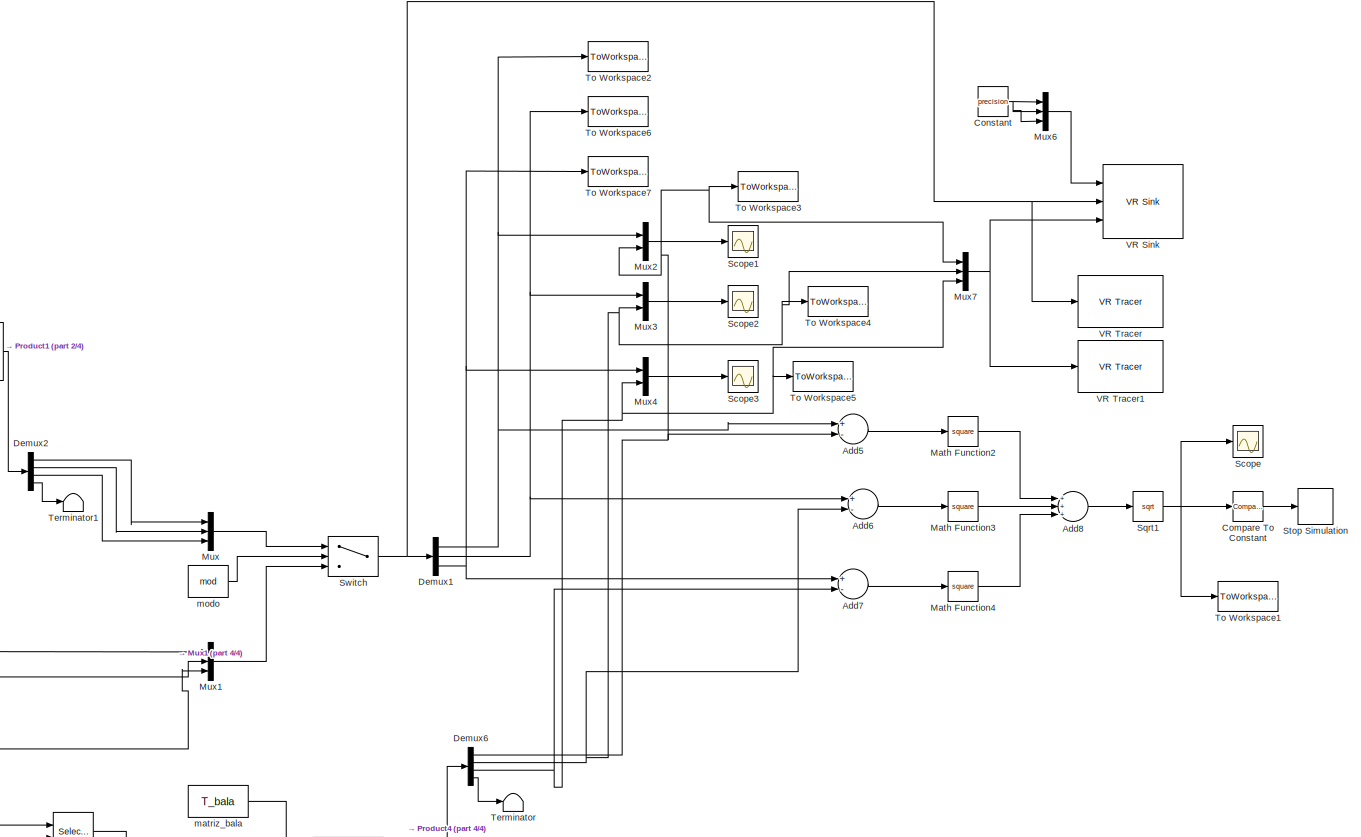
[diagram: root canvas - part 1/4, right side, full height]
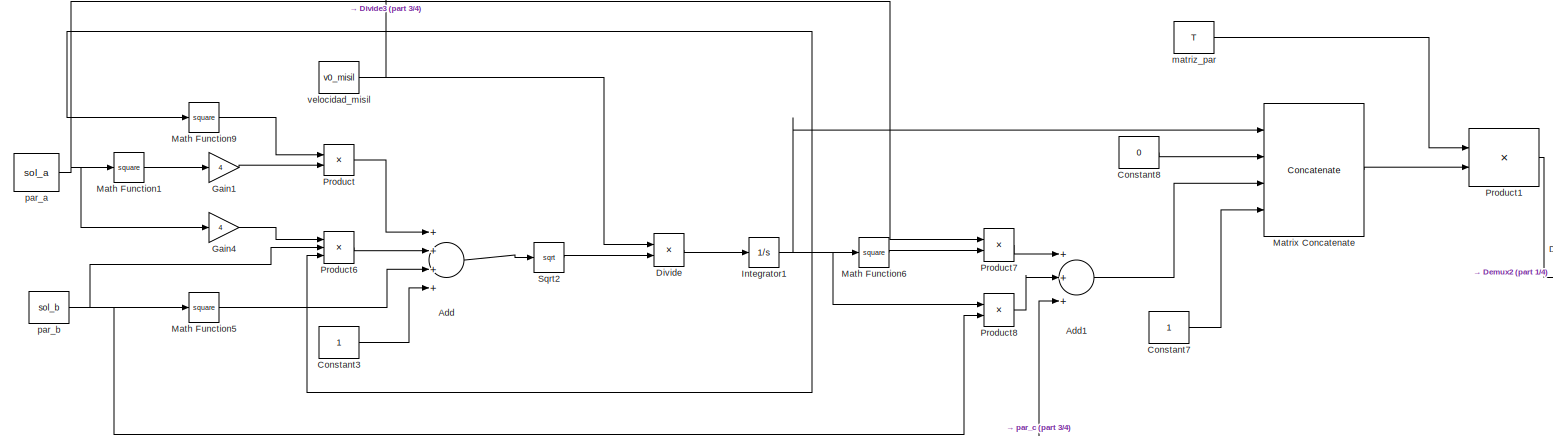
[diagram: root canvas - part 2/4, middle left region]
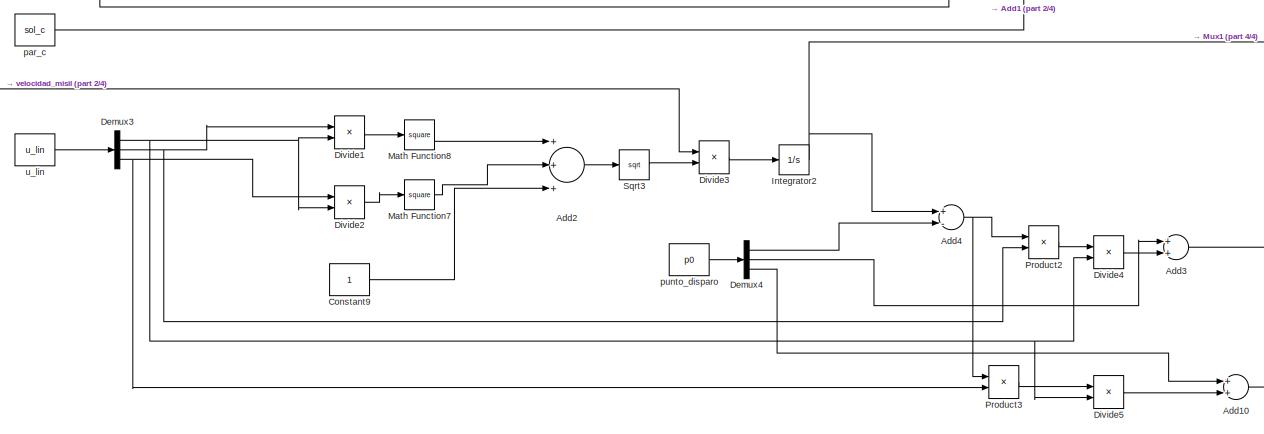
[diagram: root canvas - part 3/4, bottom left region]
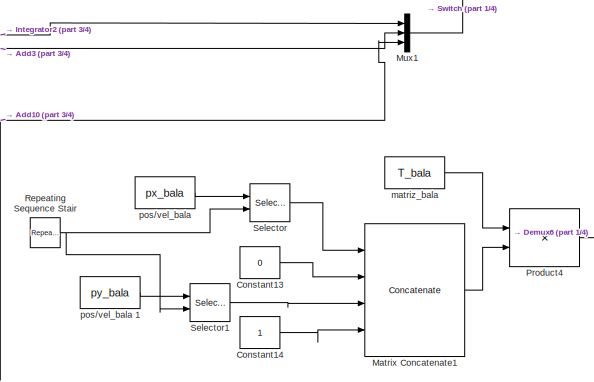
[diagram: root canvas - part 4/4, bottom center region]
MODEL slx_c09bcd163fec
KIND model
CONFIG AbsTol = auto
CONFIG FixedStep = delta_t
CONFIG MaxStep = auto
CONFIG MinStep = auto
CONFIG RelTol = 1e-3
CONFIG SampleTimeConstraint = Unconstrained
CONFIG Solver = ode3
CONFIG SolverMode = Auto
CONFIG SolverName = ode3
CONFIG StartTime = 0.0
CONFIG StopTime = 100
BLOCK [Sum] Add
  InputSameDT = off
  Inputs = ++++
  OutDataTypeStr = Inherit: Inherit via internal rule
  Ports = [4, 1]
  SaturateOnIntegerOverflow = off
BLOCK [Sum] Add1
  InputSameDT = off
  Inputs = +++
  OutDataTypeStr = Inherit: Inherit via internal rule
  Ports = [3, 1]
  SaturateOnIntegerOverflow = off
BLOCK [Sum] Add10
  InputSameDT = off
  OutDataTypeStr = Inherit: Inherit via internal rule
  Ports = [2, 1]
  SaturateOnIntegerOverflow = off
BLOCK [Sum] Add2
  InputSameDT = off
  Inputs = +++
  OutDataTypeStr = Inherit: Inherit via internal rule
  Ports = [3, 1]
  SaturateOnIntegerOverflow = off
BLOCK [Sum] Add3
  InputSameDT = off
  OutDataTypeStr = Inherit: Inherit via internal rule
  Ports = [2, 1]
  SaturateOnIntegerOverflow = off
BLOCK [Sum] Add4
  InputSameDT = off
  Inputs = +-
  OutDataTypeStr = Inherit: Inherit via internal rule
  Ports = [2, 1]
  SaturateOnIntegerOverflow = off
BLOCK [Sum] Add5
  InputSameDT = off
  Inputs = +-
  OutDataTypeStr = Inherit: Inherit via internal rule
  Ports = [2, 1]
  SaturateOnIntegerOverflow = off
BLOCK [Sum] Add6
  InputSameDT = off
  Inputs = +-
  OutDataTypeStr = Inherit: Inherit via internal rule
  Ports = [2, 1]
  SaturateOnIntegerOverflow = off
BLOCK [Sum] Add7
  InputSameDT = off
  Inputs = +-
  OutDataTypeStr = Inherit: Inherit via internal rule
  Ports = [2, 1]
  SaturateOnIntegerOverflow = off
BLOCK [Sum] Add8
  InputSameDT = off
  Inputs = +++
  OutDataTypeStr = Inherit: Inherit via internal rule
  Ports = [3, 1]
  SaturateOnIntegerOverflow = off
BLOCK [Reference] Compare To Constant  REF=simulink/Logic and Bit
Operations/Compare
To Constant
  OutDataTypeStr = boolean
  Ports = [1, 1]
  SourceBlock = simulink/Logic and Bit\nOperations/Compare\nTo Constant
  SourceType = Compare To Constant
  ZeroCross = on
  const = precision
  relop = <
BLOCK [Constant] Constant
  Value = precision
BLOCK [Constant] Constant13
  Tag = Elevacion
  Value = 0
BLOCK [Constant] Constant14
  Tag = Elevacion
BLOCK [Constant] Constant3
  Tag = Elevacion
BLOCK [Constant] Constant7
  Tag = Elevacion
BLOCK [Constant] Constant8
  Tag = Elevacion
  Value = 0
BLOCK [Constant] Constant9
  Tag = Elevacion
BLOCK [Demux] Demux1
  DisplayOption = bar
  Outputs = 3
  Ports = [1, 3]
BLOCK [Demux] Demux2
  DisplayOption = bar
  Ports = [1, 4]
BLOCK [Demux] Demux3
  DisplayOption = bar
  Outputs = 3
  Ports = [1, 3]
BLOCK [Demux] Demux4
  DisplayOption = bar
  Outputs = 3
  Ports = [1, 3]
BLOCK [Demux] Demux6
  DisplayOption = bar
  Ports = [1, 4]
BLOCK [Product] Divide
  InputSameDT = off
  Inputs = */
  OutDataTypeStr = Inherit: Inherit via internal rule
  Ports = [2, 1]
  RndMeth = Floor
  SaturateOnIntegerOverflow = off
BLOCK [Product] Divide1
  InputSameDT = off
  Inputs = */
  OutDataTypeStr = Inherit: Inherit via internal rule
  Ports = [2, 1]
  RndMeth = Floor
  SaturateOnIntegerOverflow = off
BLOCK [Product] Divide2
  InputSameDT = off
  Inputs = */
  OutDataTypeStr = Inherit: Inherit via internal rule
  Ports = [2, 1]
  RndMeth = Floor
  SaturateOnIntegerOverflow = off
BLOCK [Product] Divide3
  InputSameDT = off
  Inputs = */
  OutDataTypeStr = Inherit: Inherit via internal rule
  Ports = [2, 1]
  RndMeth = Floor
  SaturateOnIntegerOverflow = off
BLOCK [Product] Divide4
  InputSameDT = off
  Inputs = */
  OutDataTypeStr = Inherit: Inherit via internal rule
  Ports = [2, 1]
  RndMeth = Floor
  SaturateOnIntegerOverflow = off
BLOCK [Product] Divide5
  InputSameDT = off
  Inputs = */
  OutDataTypeStr = Inherit: Inherit via internal rule
  Ports = [2, 1]
  RndMeth = Floor
  SaturateOnIntegerOverflow = off
BLOCK [Gain] Gain1
  Gain = 4
  OutDataTypeStr = Inherit: Inherit via internal rule
  ParamDataTypeStr = Inherit: Inherit via internal rule
  SaturateOnIntegerOverflow = off
BLOCK [Gain] Gain4
  Gain = 4
  OutDataTypeStr = Inherit: Inherit via internal rule
  ParamDataTypeStr = Inherit: Inherit via internal rule
  SaturateOnIntegerOverflow = off
BLOCK [Integrator] Integrator1
  Ports = [1, 1]
BLOCK [Integrator] Integrator2
  InitialCondition = p0(1)
  Ports = [1, 1]
BLOCK [Math] Math Function1
  Operator = square
  Ports = [1, 1]
BLOCK [Math] Math Function2
  Operator = square
  Ports = [1, 1]
BLOCK [Math] Math Function3
  Operator = square
  Ports = [1, 1]
BLOCK [Math] Math Function4
  Operator = square
  Ports = [1, 1]
BLOCK [Math] Math Function5
  Operator = square
  Ports = [1, 1]
BLOCK [Math] Math Function6
  Operator = square
  Ports = [1, 1]
BLOCK [Math] Math Function7
  Operator = square
  Ports = [1, 1]
BLOCK [Math] Math Function8
  Operator = square
  Ports = [1, 1]
BLOCK [Math] Math Function9
  Operator = square
  Ports = [1, 1]
BLOCK [Concatenate] Matrix Concatenate
  Mode = Multidimensional array
  NumInputs = 4
  Ports = [4, 1]
BLOCK [Concatenate] Matrix Concatenate1
  Mode = Multidimensional array
  NumInputs = 4
  Ports = [4, 1]
BLOCK [Mux] Mux
  DisplayOption = bar
  Inputs = 3
  Ports = [3, 1]
BLOCK [Mux] Mux1
  DisplayOption = bar
  Inputs = 3
  Ports = [3, 1]
BLOCK [Mux] Mux2
  DisplayOption = bar
  Inputs = 2
  Ports = [2, 1]
BLOCK [Mux] Mux3
  DisplayOption = bar
  Inputs = 2
  Ports = [2, 1]
BLOCK [Mux] Mux4
  DisplayOption = bar
  Inputs = 2
  Ports = [2, 1]
BLOCK [Mux] Mux6
  DisplayOption = bar
  Inputs = 3
  Ports = [3, 1]
BLOCK [Mux] Mux7
  DisplayOption = bar
  Inputs = 3
  Ports = [3, 1]
BLOCK [Product] Product
  InputSameDT = off
  OutDataTypeStr = Inherit: Inherit via internal rule
  Ports = [2, 1]
  RndMeth = Floor
  SaturateOnIntegerOverflow = off
BLOCK [Product] Product1
  InputSameDT = off
  Multiplication = Matrix(*)
  OutDataTypeStr = Inherit: Inherit via internal rule
  Ports = [2, 1]
  RndMeth = Floor
  SaturateOnIntegerOverflow = off
BLOCK [Product] Product2
  InputSameDT = off
  OutDataTypeStr = Inherit: Inherit via internal rule
  Ports = [2, 1]
  RndMeth = Floor
  SaturateOnIntegerOverflow = off
BLOCK [Product] Product3
  InputSameDT = off
  OutDataTypeStr = Inherit: Inherit via internal rule
  Ports = [2, 1]
  RndMeth = Floor
  SaturateOnIntegerOverflow = off
BLOCK [Product] Product4
  InputSameDT = off
  Multiplication = Matrix(*)
  OutDataTypeStr = Inherit: Inherit via internal rule
  Ports = [2, 1]
  RndMeth = Floor
  SaturateOnIntegerOverflow = off
BLOCK [Product] Product6
  InputSameDT = off
  Inputs = 3
  OutDataTypeStr = Inherit: Inherit via internal rule
  Ports = [3, 1]
  RndMeth = Floor
  SaturateOnIntegerOverflow = off
BLOCK [Product] Product7
  InputSameDT = off
  OutDataTypeStr = Inherit: Inherit via internal rule
  Ports = [2, 1]
  RndMeth = Floor
  SaturateOnIntegerOverflow = off
BLOCK [Product] Product8
  InputSameDT = off
  OutDataTypeStr = Inherit: Inherit via internal rule
  Ports = [2, 1]
  RndMeth = Floor
  SaturateOnIntegerOverflow = off
BLOCK [Reference] Repeating Sequence Stair  REF=simulink/Sources/Repeating
Sequence
Stair
  ConRadixGroup = Best Precision: Vector-wise
  LockScale = off
  OutDataType = fixdt(0,8)
  OutDataTypeStr = double
  OutMax = []
  OutMin = []
  OutScaling = 2^-12
  OutValues = index_bala.'
  OutputDataTypeScalingMode = double
  Ports = [0, 1]
  SourceBlock = simulink/Sources/Repeating\nSequence\nStair
  SourceType = Repeating Sequence Stair
  tsamp = -1
BLOCK [Scope] Scope
  DataFormat = Array
  Decimation = 1
  Grid = on
  LimitDataPoints = on
  MaxDataPoints = 5000
  NumInputPorts = 1
  Ports = [1]
  SampleInput = off
  SampleTime = -1
  SaveName = ScopeData
  SaveToWorkspace = off
  ShowLegends = off
  TickLabels = OneTimeTick
  TimeRange = auto
  YMax = 140107.33308
  YMin = 93986.50188
  ZoomMode = on
BLOCK [Scope] Scope1
  DataFormat = Array
  Decimation = 1
  Grid = on
  LimitDataPoints = on
  MaxDataPoints = 5000
  NumInputPorts = 1
  Ports = [1]
  SampleInput = off
  SampleTime = -1
  SaveName = ScopeData1
  SaveToWorkspace = off
  ShowLegends = off
  TickLabels = OneTimeTick
  TimeRange = auto
  YMax = 1121.58339
  YMin = -10091.4526
  ZoomMode = on
BLOCK [Scope] Scope2
  DataFormat = Array
  Decimation = 1
  Grid = on
  LimitDataPoints = on
  MaxDataPoints = 5000
  NumInputPorts = 1
  Ports = [1]
  SampleInput = off
  SampleTime = -1
  SaveName = ScopeData2
  SaveToWorkspace = off
  ShowLegends = off
  TickLabels = OneTimeTick
  TimeRange = auto
  YMax = 9291.65254
  YMin = -1027.49282
  ZoomMode = on
BLOCK [Scope] Scope3
  DataFormat = Array
  Decimation = 1
  Grid = on
  LimitDataPoints = on
  MaxDataPoints = 5000
  NumInputPorts = 1
  Ports = [1]
  SampleInput = off
  SampleTime = -1
  SaveName = ScopeData3
  SaveToWorkspace = off
  ShowLegends = off
  TickLabels = OneTimeTick
  TimeRange = auto
  YMax = 5624.99987
  YMin = -624.99999
  ZoomMode = on
BLOCK [Selector] Selector
  IndexOptions = Index vector (port)
  Indices = [1 3]
  OutputSizes = 1
  Ports = [2, 1]
BLOCK [Selector] Selector1
  IndexOptions = Index vector (port)
  Indices = [1 3]
  OutputSizes = 1
  Ports = [2, 1]
BLOCK [Sqrt] Sqrt1
BLOCK [Sqrt] Sqrt2
BLOCK [Sqrt] Sqrt3
BLOCK [Stop] Stop Simulation
BLOCK [Switch] Switch
  Criteria = u2 > Threshold
  InputSameDT = off
  SaturateOnIntegerOverflow = off
BLOCK [Terminator] Terminator
BLOCK [Terminator] Terminator1
BLOCK [ToWorkspace] To Workspace1
  FixptAsFi = on
  MaxDataPoints = inf
  Ports = [1]
  SampleTime = -1
  Save2DSignal = 2-D array (concatenate along first dimension)
  VariableName = dis_col
BLOCK [ToWorkspace] To Workspace2
  FixptAsFi = on
  MaxDataPoints = inf
  Ports = [1]
  SampleTime = -1
  Save2DSignal = 2-D array (concatenate along first dimension)
  VariableName = x_misil
BLOCK [ToWorkspace] To Workspace3
  FixptAsFi = on
  MaxDataPoints = inf
  Ports = [1]
  SampleTime = -1
  Save2DSignal = 2-D array (concatenate along first dimension)
  VariableName = x_bala
BLOCK [ToWorkspace] To Workspace4
  FixptAsFi = on
  MaxDataPoints = inf
  Ports = [1]
  SampleTime = -1
  Save2DSignal = 2-D array (concatenate along first dimension)
  VariableName = y_bala
BLOCK [ToWorkspace] To Workspace5
  FixptAsFi = on
  MaxDataPoints = inf
  Ports = [1]
  SampleTime = -1
  Save2DSignal = 2-D array (concatenate along first dimension)
  VariableName = z_bala
BLOCK [ToWorkspace] To Workspace6
  FixptAsFi = on
  MaxDataPoints = inf
  Ports = [1]
  SampleTime = -1
  Save2DSignal = 2-D array (concatenate along first dimension)
  VariableName = y_misil
BLOCK [ToWorkspace] To Workspace7
  FixptAsFi = on
  MaxDataPoints = inf
  Ports = [1]
  SampleTime = -1
  Save2DSignal = 2-D array (concatenate along first dimension)
  VariableName = z_misil
BLOCK [Reference] VR Sink  REF=vrlib/VR Sink
  AllowVariableSize = off
  AutoView = off
  FieldsWritten = misil.scale.3.1.1.double#misil.translation.3.1.1.double#bala.translation.3.1.1.double
  InstantiateOnLoad = on
  Ports = [3]
  RemoteChange = off
  RemoteView = off
  SampleTime = -1
  SourceBlock = vrlib/VR Sink
  SourceType = Virtual Reality Sink
  VideoDimensions = []
  ViewEnable = on
  WorldFileName = robot.wrl
BLOCK [Reference] VR Tracer  REF=vrlib/VR Tracer
  ConnectPlane = off
  ConnectPoint = None
  ForceViewerOpen = off
  MarkerColor = red
  MarkerColorSelection = Selected from color list
  MarkerName = Tetrahedron
  MarkerScale = [10 10 10]
  PlaneCoeff = [0 1 0 0]
  PointCoord = [0 0 0]
  Ports = [1]
  SourceBlock = vrlib/VR Tracer
  SourceType = VR Tracer
  Ts = -1
  UseLines = on
  UseTriads = off
  VrmlFile = robot.wrl
  rgbval = [1 0 0]
BLOCK [Reference] VR Tracer1  REF=vrlib/VR Tracer
  ConnectPlane = off
  ConnectPoint = None
  ForceViewerOpen = off
  MarkerColor = blue
  MarkerColorSelection = Selected from color list
  MarkerName = Pyramid
  MarkerScale = [10 10 10]
  PlaneCoeff = [0 1 0 0]
  PointCoord = [0 0 0]
  Ports = [1]
  SourceBlock = vrlib/VR Tracer
  SourceType = VR Tracer
  Ts = -1
  UseLines = on
  UseTriads = off
  VrmlFile = robot.wrl
  rgbval = [1 0 0]
BLOCK [Constant] matriz_bala
  Tag = Elevacion
  Value = T_bala
  VectorParams1D = off
BLOCK [Constant] matriz_par 
  Tag = Elevacion
  Value = T
  VectorParams1D = off
BLOCK [Constant] modo
  Tag = Elevacion
  Value = mod
BLOCK [Constant] par_a
  Tag = Elevacion
  Value = sol_a
BLOCK [Constant] par_b
  Tag = Elevacion
  Value = sol_b
BLOCK [Constant] par_c
  Tag = Elevacion
  Value = sol_c
BLOCK [Constant] pos//vel_bala 
  Tag = Elevacion
  Value = px_bala
  VectorParams1D = off
BLOCK [Constant] pos//vel_bala 1
  Tag = Elevacion
  Value = py_bala
  VectorParams1D = off
BLOCK [Constant] punto_disparo
  Tag = Elevacion
  Value = p0
  VectorParams1D = off
BLOCK [Constant] u_lin
  Tag = Elevacion
  Value = u_lin
BLOCK [Constant] velocidad_misil
  Tag = Elevacion
  Value = v0_misil
LINE Add10:1 -> Mux1:3
LINE Add1:1 -> Matrix Concatenate:3
LINE Add2:1 -> Sqrt3:1
LINE Add3:1 -> Mux1:2
NET Add4:1 -> Product2:1, Product3:1
LINE Add5:1 -> Math Function2:1
LINE Add6:1 -> Math Function3:1
LINE Add7:1 -> Math Function4:1
LINE Add8:1 -> Sqrt1:1
LINE Add:1 -> Sqrt2:1
LINE Compare To Constant:1 -> Stop Simulation:1
LINE Constant13:1 -> Matrix Concatenate1:2
LINE Constant14:1 -> Matrix Concatenate1:4
LINE Constant3:1 -> Add:4
LINE Constant7:1 -> Matrix Concatenate:4
LINE Constant8:1 -> Matrix Concatenate:2
LINE Constant9:1 -> Add2:3
NET Constant:1 -> Mux6:1, Mux6:2, Mux6:3
NET Demux1:1 -> Add5:1, Mux2:1, To Workspace2:1
NET Demux1:2 -> Add6:1, Mux3:1, To Workspace6:1
NET Demux1:3 -> Add7:1, Mux4:1, To Workspace7:1
LINE Demux2:1 -> Mux:1
LINE Demux2:2 -> Mux:2
LINE Demux2:3 -> Mux:3
LINE Demux2:4 -> Terminator1:1
NET Demux3:1 -> Divide1:2, Divide2:2, Divide4:2, Divide5:2
NET Demux3:2 -> Divide1:1, Product2:2
NET Demux3:3 -> Divide2:1, Product3:2
LINE Demux4:1 -> Add4:2
LINE Demux4:2 -> Add3:1
LINE Demux4:3 -> Add10:1
NET Demux6:1 -> Add5:2, Mux2:2, Mux7:1, To Workspace3:1
NET Demux6:2 -> Add6:2, Mux3:2, Mux7:2, To Workspace4:1
NET Demux6:3 -> Add7:2, Mux4:2, Mux7:3, To Workspace5:1
LINE Demux6:4 -> Terminator:1
LINE Divide1:1 -> Math Function8:1
LINE Divide2:1 -> Math Function7:1
LINE Divide3:1 -> Integrator2:1
LINE Divide4:1 -> Add3:2
LINE Divide5:1 -> Add10:2
LINE Divide:1 -> Integrator1:1
LINE Gain1:1 -> Product:2
LINE Gain4:1 -> Product6:1
NET Integrator1:1 -> Math Function6:1, Math Function9:1, Matrix Concatenate:1, Product6:3, Product8:1
NET Integrator2:1 -> Add4:1, Mux1:1
LINE Math Function1:1 -> Gain1:1
LINE Math Function2:1 -> Add8:1
LINE Math Function3:1 -> Add8:2
LINE Math Function4:1 -> Add8:3
LINE Math Function5:1 -> Add:3
LINE Math Function6:1 -> Product7:2
LINE Math Function7:1 -> Add2:2
LINE Math Function8:1 -> Add2:1
LINE Math Function9:1 -> Product:1
LINE Matrix Concatenate1:1 -> Product4:2
LINE Matrix Concatenate:1 -> Product1:2
LINE Mux1:1 -> Switch:3
LINE Mux2:1 -> Scope1:1
LINE Mux3:1 -> Scope2:1
LINE Mux4:1 -> Scope3:1
LINE Mux6:1 -> VR Sink:1
NET Mux7:1 -> VR Sink:3, VR Tracer1:1
LINE Mux:1 -> Switch:1
LINE Product1:1 -> Demux2:1
LINE Product2:1 -> Divide4:1
LINE Product3:1 -> Divide5:1
LINE Product4:1 -> Demux6:1
LINE Product6:1 -> Add:2
LINE Product7:1 -> Add1:1
LINE Product8:1 -> Add1:2
LINE Product:1 -> Add:1
NET Repeating Sequence Stair:1 -> Selector1:2, Selector:2
LINE Selector1:1 -> Matrix Concatenate1:3
LINE Selector:1 -> Matrix Concatenate1:1
NET Sqrt1:1 -> Compare To Constant:1, Scope:1, To Workspace1:1
LINE Sqrt2:1 -> Divide:2
LINE Sqrt3:1 -> Divide3:2
NET Switch:1 -> Demux1:1, VR Sink:2, VR Tracer:1
LINE matriz_bala:1 -> Product4:1
LINE matriz_par :1 -> Product1:1
LINE modo:1 -> Switch:2
NET par_a:1 -> Gain4:1, Math Function1:1, Product7:1
NET par_b:1 -> Math Function5:1, Product6:2, Product8:2
LINE par_c:1 -> Add1:3
LINE pos//vel_bala 1:1 -> Selector1:1
LINE pos//vel_bala :1 -> Selector:1
LINE punto_disparo:1 -> Demux4:1
LINE u_lin:1 -> Demux3:1
NET velocidad_misil:1 -> Divide3:1, Divide:1
note: NET lines group one-source signal fan-out (src -> all destinations, sorted); 1:1 wires keep LINE
